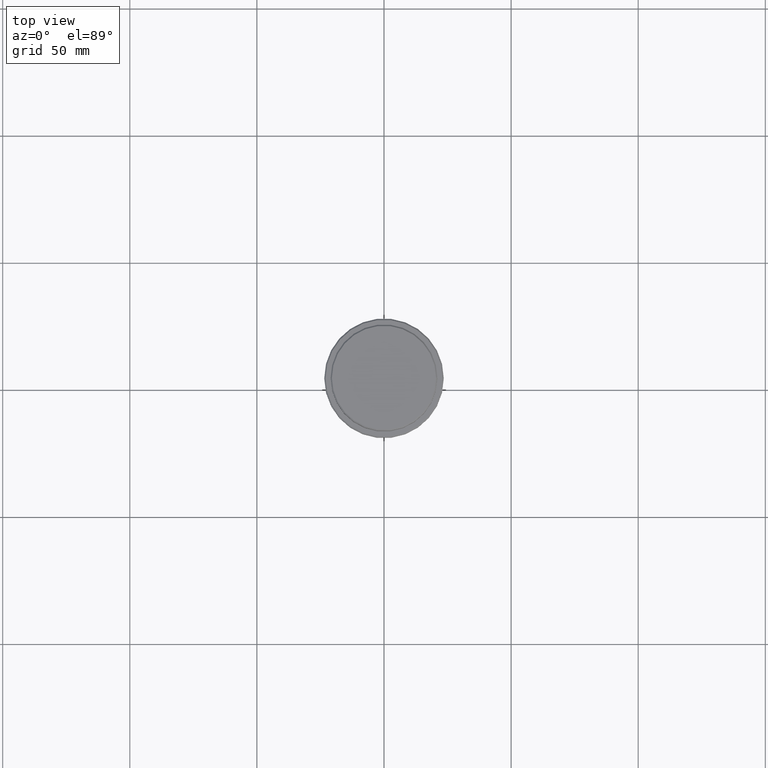
[diagram: clean part render]
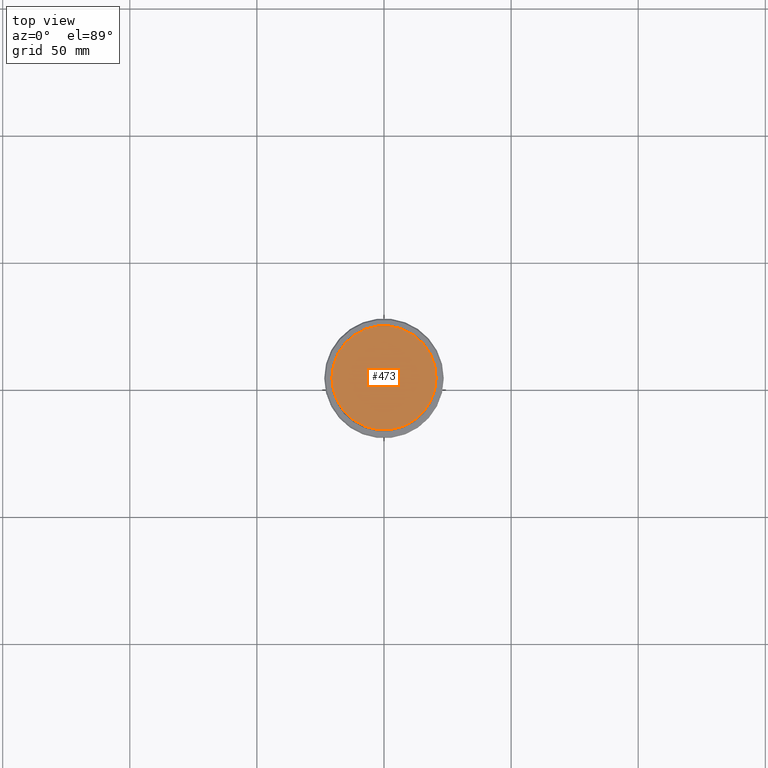
[diagram: same view with one face highlighted and labeled with its STEP entity id]
A machine part, top view. The second image highlights one B-rep face of the part: STEP entity #473.
In plain terms, the highlighted planar face has unit normal (0, -0, 1).
Its self-contained STEP definition (entity closure, byte-faithful):
#75 = ORIENTED_EDGE ( 'NONE', *, *, #523, .T. ) ;
#110 = AXIS2_PLACEMENT_3D ( 'NONE', #788, #325, #1186 ) ;
#206 = CARTESIAN_POINT ( 'NONE',  ( 0.000000000000000000, 0.000000000000000000, 0.000000000000000000 ) ) ;
#219 = CARTESIAN_POINT ( 'NONE',  ( 0.000000000000000000, 0.000000000000000000, 0.000000000000000000 ) ) ;
#223 = DIRECTION ( 'NONE',  ( 1.000000000000000000, 0.000000000000000000, 0.000000000000000000 ) ) ;
#314 = CIRCLE ( 'NONE', #1106, 20.50000000000004619 ) ;
#325 = DIRECTION ( 'NONE',  ( 0.000000000000000000, -0.000000000000000000, 1.000000000000000000 ) ) ;
#332 = DIRECTION ( 'NONE',  ( -0.000000000000000000, -0.000000000000000000, 1.000000000000000000 ) ) ;
#473 = ADVANCED_FACE ( 'NONE', ( #761 ), #1203, .T. ) ;
#523 = EDGE_CURVE ( 'NONE', #930, #1385, #925, .T. ) ;
#739 = ORIENTED_EDGE ( 'NONE', *, *, #1404, .T. ) ;
#761 = FACE_OUTER_BOUND ( 'NONE', #1403, .T. ) ;
#782 = DIRECTION ( 'NONE',  ( -0.000000000000000000, -0.000000000000000000, 1.000000000000000000 ) ) ;
#788 = CARTESIAN_POINT ( 'NONE',  ( 0.000000000000000000, 0.000000000000000000, 0.000000000000000000 ) ) ;
#925 = CIRCLE ( 'NONE', #1378, 20.50000000000004619 ) ;
#930 = VERTEX_POINT ( 'NONE', #1026 ) ;
#1026 = CARTESIAN_POINT ( 'NONE',  ( -20.50000000000004619, 0.000000000000000000, 0.000000000000000000 ) ) ;
#1106 = AXIS2_PLACEMENT_3D ( 'NONE', #206, #782, #223 ) ;
#1186 = DIRECTION ( 'NONE',  ( 1.000000000000000000, 0.000000000000000000, 0.000000000000000000 ) ) ;
#1203 = PLANE ( 'NONE',  #110 ) ;
#1204 = CARTESIAN_POINT ( 'NONE',  ( 20.50000000000004619, 2.541142108230760635E-15, 0.000000000000000000 ) ) ;
#1217 = DIRECTION ( 'NONE',  ( 1.000000000000000000, 0.000000000000000000, 0.000000000000000000 ) ) ;
#1378 = AXIS2_PLACEMENT_3D ( 'NONE', #219, #332, #1217 ) ;
#1385 = VERTEX_POINT ( 'NONE', #1204 ) ;
#1403 = EDGE_LOOP ( 'NONE', ( #75, #739 ) ) ;
#1404 = EDGE_CURVE ( 'NONE', #1385, #930, #314, .T. ) ;